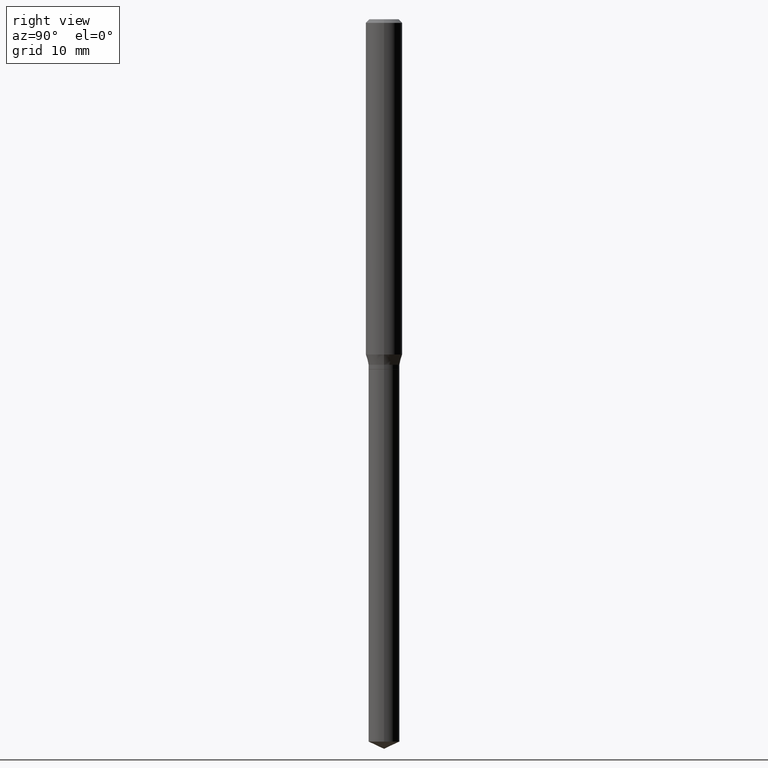
[diagram: clean part render]
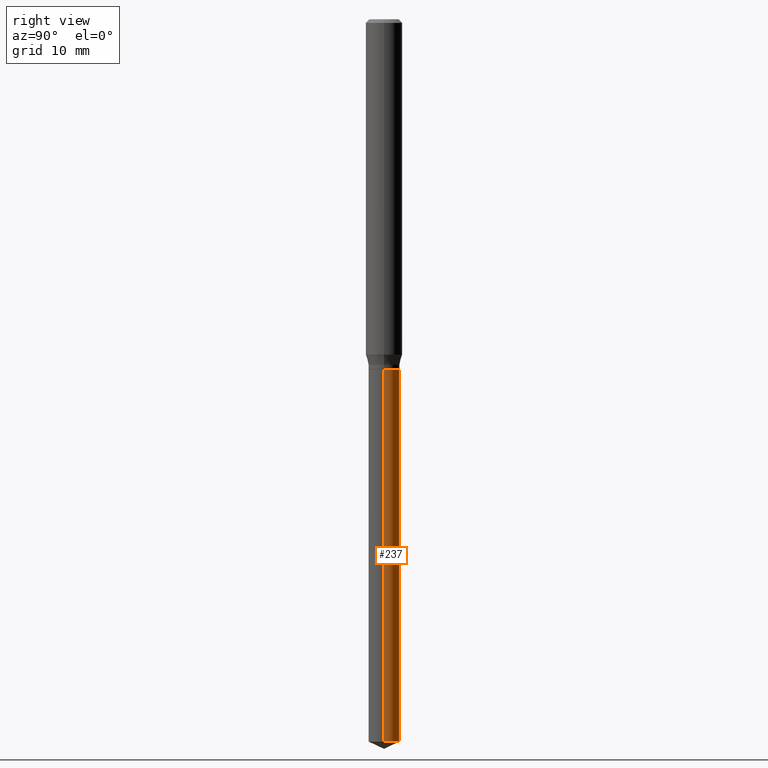
[diagram: same view with one face highlighted and labeled with its STEP entity id]
A machine part, right view. The second image highlights one B-rep face of the part: STEP entity #237.
In plain terms, the highlighted cylindrical surface (edge-blend (fillet) strip) has radius 1.2751 mm, axis along (-0, 0, 1).
Its self-contained STEP definition (entity closure, byte-faithful):
#11 = CARTESIAN_POINT ( 'NONE',  ( -0.05020000000000000157, -3.602298236762673113E-15, -1.133900000000000130 ) ) ;
#22 = DIRECTION ( 'NONE',  ( -2.445468806185136877E-29, 3.491481338843145188E-15, 1.000000000000000000 ) ) ;
#47 = DIRECTION ( 'NONE',  ( -2.445468806185136597E-29, 3.491481338843145583E-15, 1.000000000000000000 ) ) ;
#61 = ORIENTED_EDGE ( 'NONE', *, *, #245, .T. ) ;
#64 = AXIS2_PLACEMENT_3D ( 'NONE', #431, #362, #368 ) ;
#67 = CARTESIAN_POINT ( 'NONE',  ( 2.772917079333326390E-29, -3.958990690114243565E-15, -1.133900000000000130 ) ) ;
#113 = VERTEX_POINT ( 'NONE', #267 ) ;
#118 = CARTESIAN_POINT ( 'NONE',  ( -0.05020000000000000850, -7.809153920035995309E-15, -2.338791355560618790 ) ) ;
#141 = DIRECTION ( 'NONE',  ( 1.000000000000000000, -6.982962677686262766E-15, 0.000000000000000000 ) ) ;
#143 = VERTEX_POINT ( 'NONE', #118 ) ;
#152 = ORIENTED_EDGE ( 'NONE', *, *, #176, .F. ) ;
#158 = CARTESIAN_POINT ( 'NONE',  ( 2.772917079333326950E-29, -3.958990690114243565E-15, -1.133900000000000352 ) ) ;
#167 = EDGE_LOOP ( 'NONE', ( #61, #291, #152, #188 ) ) ;
#171 = FACE_OUTER_BOUND ( 'NONE', #167, .T. ) ;
#173 = LINE ( 'NONE', #290, #223 ) ;
#176 = EDGE_CURVE ( 'NONE', #281, #113, #342, .T. ) ;
#184 = AXIS2_PLACEMENT_3D ( 'NONE', #158, #47, #349 ) ;
#186 = VERTEX_POINT ( 'NONE', #466 ) ;
#188 = ORIENTED_EDGE ( 'NONE', *, *, #226, .F. ) ;
#223 = VECTOR ( 'NONE', #22, 39.37007874015748143 ) ;
#226 = EDGE_CURVE ( 'NONE', #186, #281, #173, .T. ) ;
#237 = ADVANCED_FACE ( 'NONE', ( #171 ), #330, .T. ) ;
#244 = CARTESIAN_POINT ( 'NONE',  ( 0.05020000000000000157, -4.309535416534094104E-15, -1.133900000000000352 ) ) ;
#245 = EDGE_CURVE ( 'NONE', #186, #143, #479, .T. ) ;
#267 = CARTESIAN_POINT ( 'NONE',  ( -0.05020000000000000157, -5.705726078399334605E-15, -1.133900000000000352 ) ) ;
#281 = VERTEX_POINT ( 'NONE', #244 ) ;
#290 = CARTESIAN_POINT ( 'NONE',  ( 0.05020000000000000157, -4.309535416534093315E-15, -1.133900000000000130 ) ) ;
#291 = ORIENTED_EDGE ( 'NONE', *, *, #460, .T. ) ;
#305 = VECTOR ( 'NONE', #354, 39.37007874015748143 ) ;
#330 = CYLINDRICAL_SURFACE ( 'NONE', #367, 0.05020000000000000157 ) ;
#342 = CIRCLE ( 'NONE', #184, 0.05020000000000000157 ) ;
#349 = DIRECTION ( 'NONE',  ( 1.000000000000000000, -6.982962677686262766E-15, 0.000000000000000000 ) ) ;
#354 = DIRECTION ( 'NONE',  ( -2.445468806185136877E-29, 3.491481338843145188E-15, 1.000000000000000000 ) ) ;
#362 = DIRECTION ( 'NONE',  ( -2.445468806185136597E-29, 3.491481338843145583E-15, 1.000000000000000000 ) ) ;
#367 = AXIS2_PLACEMENT_3D ( 'NONE', #67, #401, #141 ) ;
#368 = DIRECTION ( 'NONE',  ( 1.000000000000000000, -6.982962677686262766E-15, 0.000000000000000000 ) ) ;
#401 = DIRECTION ( 'NONE',  ( -2.445468806185136597E-29, 3.491481338843145583E-15, 1.000000000000000000 ) ) ;
#423 = LINE ( 'NONE', #11, #305 ) ;
#431 = CARTESIAN_POINT ( 'NONE',  ( 5.719441304198943975E-29, -8.165846373387565761E-15, -2.338791355560618790 ) ) ;
#460 = EDGE_CURVE ( 'NONE', #143, #113, #423, .T. ) ;
#466 = CARTESIAN_POINT ( 'NONE',  ( 0.05020000000000000850, -8.516391099807416299E-15, -2.338791355560618790 ) ) ;
#479 = CIRCLE ( 'NONE', #64, 0.05020000000000000157 ) ;